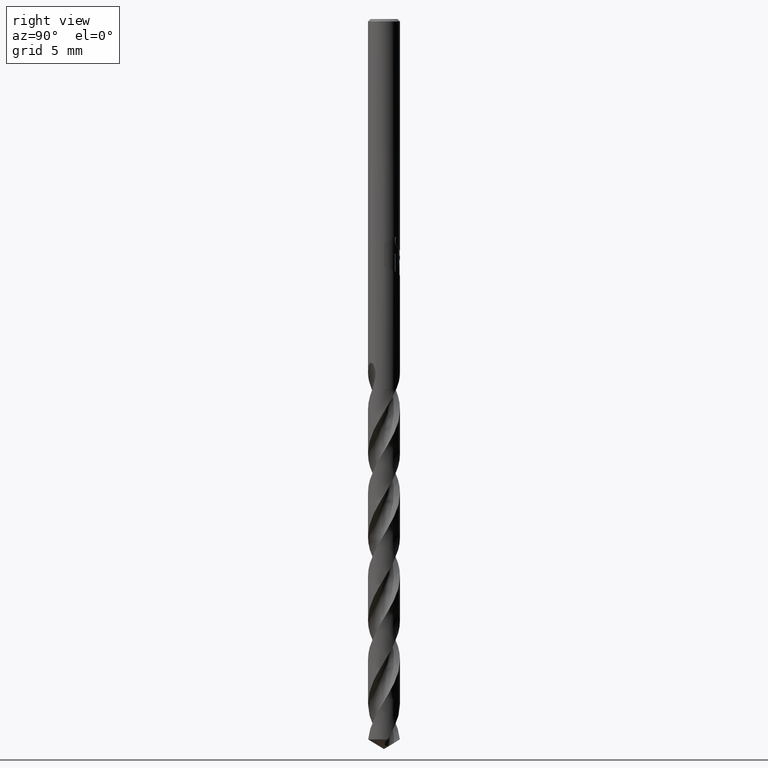
[diagram: clean part render]
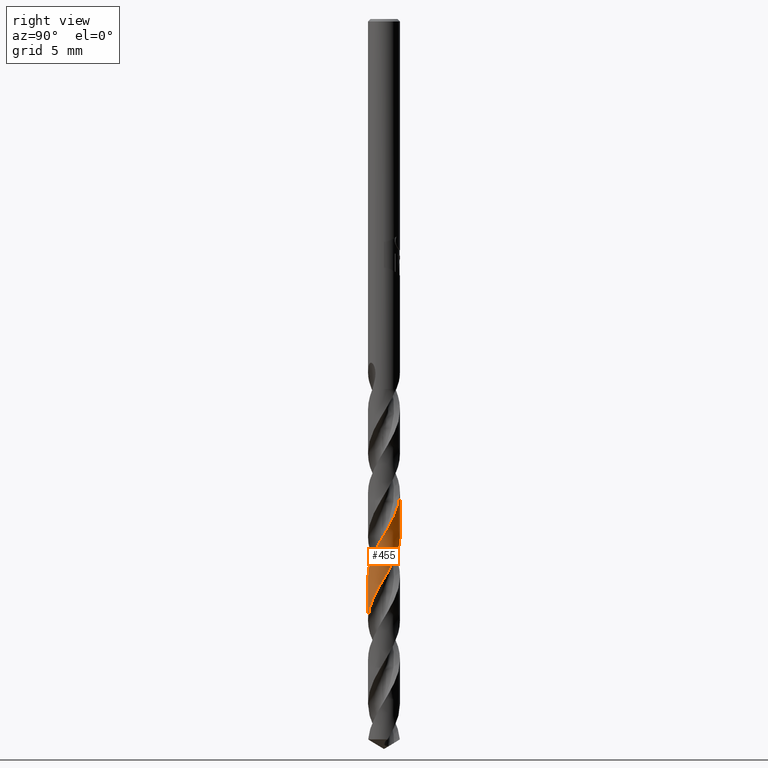
[diagram: same view with one face highlighted and labeled with its STEP entity id]
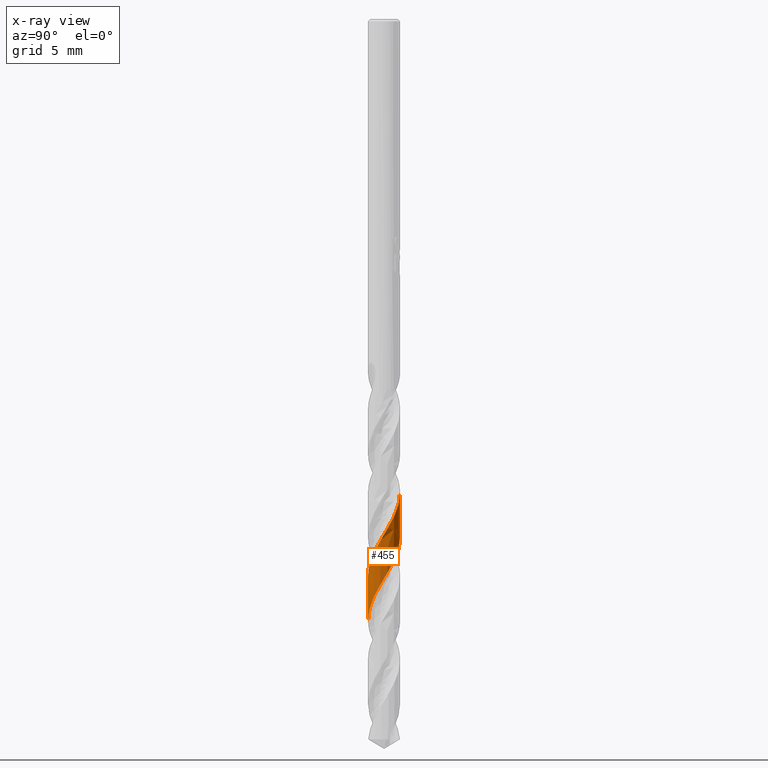
[diagram: x-ray of the same camera — body ghosted, the highlighted face saturated]
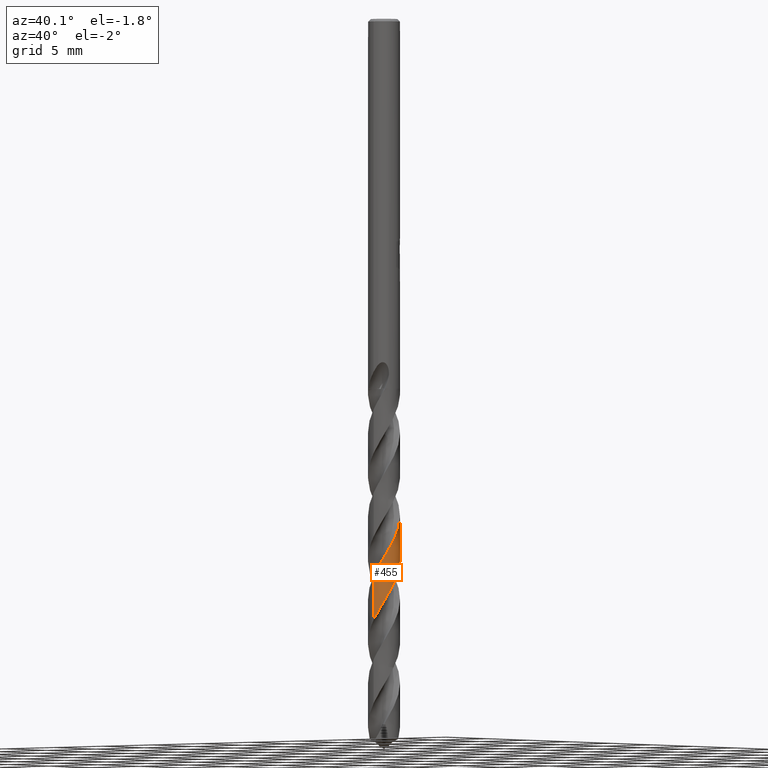
[diagram: same view with one face highlighted and labeled with its STEP entity id]
A machine part, right view. The second image highlights one B-rep face of the part: STEP entity #455.
The next image is the same camera in x-ray: the body ghosted, the highlighted face saturated — about 0% of this face is hidden behind the body in this view.
A second angle (auxiliary view) of the same face is appended — the face is thin or edge-on in the first view.
In plain terms, the highlighted conical surface has half-angle 0 deg.
Its self-contained STEP definition (entity closure, byte-faithful):
#377=EDGE_CURVE('',#393,#419,#904,.T.);
#383=EDGE_CURVE('',#393,#405,#911,.T.);
#393=VERTEX_POINT('',#921);
#405=VERTEX_POINT('',#934);
#419=VERTEX_POINT('',#948);
#455=ADVANCED_FACE('',(#986),#987,.T.);
#465=EDGE_CURVE('',#759,#405,#998,.T.);
#529=EDGE_CURVE('',#759,#419,#1071,.T.);
#759=VERTEX_POINT('',#1320);
#904=LINE('',#2755,#2756);
#911=B_SPLINE_CURVE_WITH_KNOTS('',3,(#2944,#2945,#2946,#2947,#2948,#2949,#2950,#2951,#2952,#2953,#2954,#2955,#2956,#2957,#2958,#2959,#2960,#2961,#2962,#2963,#2964,#2965,#2966,#2967,#2968,#2969,#2970,#2971,#2972,#2973,#2974,#2975,#2976,#2977,#2978,#2979,#2980,#2981,#2982,#2983,#2984,#2985,#2986,#2987,#2988,#2989,#2990,#2991,#2992,#2993,#2994,#2995,#2996,#2997,#2998,#2999,#3000,#3001,#3002,#3003,#3004,#3005,#3006,#3007,#3008,#3009,#3010,#3011,#3012,#3013,#3014,#3015,#3016,#3017,#3018,#3019,#3020,#3021,#3022,#3023,#3024,#3025,#3026,#3027,#3028,#3029,#3030,#3031,#3032,#3033,#3034,#3035,#3036,#3037,#3038,#3039,#3040,#3041,#3042,#3043,#3044,#3045,#3046,#3047,#3048,#3049,#3050,#3051,#3052,#3053,#3054,#3055,#3056,#3057,#3058,#3059,#3060,#3061,#3062,#3063,#3064,#3065,#3066,#3067,#3068,#3069,#3070,#3071,#3072,#3073,#3074,#3075,#3076,#3077,#3078,#3079,#3080,#3081,#3082,#3083,#3084,#3085,#3086,#3087,#3088,#3089,#3090,#3091,#3092,#3093,#3094,#3095,#3096,#3097,#3098,#3099,#3100,#3101,#3102,#3103,#3104,#3105,#3106,#3107,#3108,#3109,#3110,#3111,#3112,#3113,#3114,#3115,#3116,#3117,#3118,#3119,#3120,#3121,#3122,#3123),.UNSPECIFIED.,.F.,.F.,(4,2,2,2,2,2,2,2,2,2,2,2,2,2,2,2,2,2,2,2,2,2,2,2,2,2,2,2,2,2,2,2,2,2,2,2,2,2,2,2,2,2,2,2,2,2,2,2,2,2,2,2,2,2,2,2,2,2,2,2,2,2,2,2,2,2,2,2,2,2,2,2,2,2,2,2,2,2,2,2,2,2,2,2,2,2,2,2,2,4),(0.0,0.0909348931718711,0.115186404871069,0.126380924618009,0.133713174575487,0.13948985167161,0.143998271473783,0.147488724298821,0.150173072160435,0.152226289511834,0.153789951420098,0.154976708090192,0.155875004566876,0.156553553889951,0.316042703266544,0.352636866964819,0.372468255474102,0.389006252391213,0.408476555021637,0.443421068836232,0.486408987907577,0.60269619316079,0.755117598854112,0.830415767092418,0.89063847978405,0.959537293950322,0.997951065865658,1.09698685808744,1.30077163526895,1.48442158252795,1.66019078902333,2.14607847380218,2.75932737589629,3.5783399073448,3.8065169713828,4.29200475412673,4.89939587442972,5.27658758449398,5.86265981877751,6.3252195000613,6.94965006182895,7.32635802853059,7.91129176533725,8.37867294591997,9.00863678988123,9.37497656258834,9.95776221305471,10.4308968229521,11.065683557127,11.4236683442172,12.0056654136052,12.4802578372729,13.1159354979964,13.4719022686478,14.0533447300325,14.5286798215418,15.1652239522879,15.519369418626,16.1008941549275,16.5751121737535,17.2105555432538,17.5658527380777,18.1471049861199,18.6212119408332,19.2563336845716,19.6115126588065,20.1921493381833,20.6671410470568,21.3030497491658,21.6565153287659,22.23733066286,22.7109259570928,23.34555713719,23.7004541160807,24.2809905435139,24.7545116749879,25.3889046918527,25.7435711029265,26.3236035371818,26.7976664052889,27.4320243638706,27.7860757874193,28.3668763025597,28.8387480909508,29.4705654763868,29.8256577611619,30.4019313972766,31.1266380394981,31.4946311360113,31.8656853193045),.UNSPECIFIED.);
#921=CARTESIAN_POINT('',(-5.60317843082092E-014,1.2499296575455,-37.0039854017858));
#934=CARTESIAN_POINT('',(-5.320533709324E-013,-1.24995346099853,-43.5163540786839));
#948=CARTESIAN_POINT('',(1.45499969649048E-016,1.24994220320497,-40.4363428703288));
#986=FACE_OUTER_BOUND('',#3436,.T.);
#987=CONICAL_SURFACE('',#3437,1.24995,3.65511447645748E-006);
#998=LINE('',#3453,#3454);
#1071=B_SPLINE_CURVE_WITH_KNOTS('',3,(#5805,#5806,#5807,#5808,#5809,#5810,#5811,#5812,#5813,#5814,#5815,#5816,#5817,#5818,#5819,#5820,#5821,#5822,#5823,#5824,#5825,#5826,#5827,#5828,#5829,#5830,#5831,#5832,#5833,#5834,#5835,#5836,#5837,#5838,#5839,#5840,#5841,#5842,#5843,#5844,#5845,#5846,#5847,#5848,#5849,#5850,#5851,#5852,#5853,#5854,#5855,#5856,#5857,#5858,#5859,#5860,#5861,#5862,#5863,#5864,#5865,#5866,#5867,#5868,#5869,#5870,#5871,#5872,#5873,#5874,#5875,#5876,#5877,#5878,#5879,#5880,#5881,#5882,#5883,#5884,#5885,#5886,#5887,#5888,#5889,#5890,#5891,#5892,#5893,#5894,#5895,#5896,#5897,#5898,#5899,#5900,#5901,#5902,#5903,#5904,#5905,#5906,#5907,#5908,#5909,#5910,#5911,#5912,#5913,#5914,#5915,#5916,#5917,#5918,#5919,#5920,#5921,#5922,#5923,#5924,#5925,#5926,#5927,#5928,#5929,#5930,#5931,#5932,#5933,#5934,#5935,#5936,#5937,#5938,#5939,#5940,#5941,#5942,#5943,#5944,#5945,#5946,#5947,#5948,#5949,#5950,#5951,#5952,#5953,#5954),.UNSPECIFIED.,.F.,.F.,(4,2,2,2,2,2,2,2,2,2,2,2,2,2,2,2,2,2,2,2,2,2,2,2,2,2,2,2,2,2,2,2,2,2,2,2,2,2,2,2,2,2,2,2,2,2,2,2,2,2,2,2,2,2,2,2,2,2,2,2,2,2,2,2,2,2,2,2,2,2,2,2,2,2,4),(0.0,0.365916372222381,0.820304791255195,1.04655696786123,1.27803307812477,2.11266659182698,2.32275710199181,3.15788784397125,3.36212088962481,4.21683285897001,4.31563751838501,5.03475957910948,5.66145739077558,6.1102102127332,6.65287451289157,7.09969309095822,7.70523282328109,8.15333191463379,8.62750838921573,9.27581148330259,9.50252762851326,10.2990852815213,10.5310919660561,11.3205802459735,11.5605495352967,12.3403776657064,12.8353441999944,13.2851131150844,13.9213311786311,14.373701780281,14.9170809289804,15.3673247441859,15.979547237918,16.4311816263969,16.9089785846059,17.5646067982347,17.7916233352997,18.597299418671,18.8287801051193,19.6280799395391,19.8666041904523,20.6570301266019,21.1467772154434,21.5996978178747,22.242180949172,22.6978093734393,23.2436558936871,23.6970731446351,24.3144593837787,24.7693138109984,25.2504682043452,25.9121513271063,26.1400153917101,26.9507141600616,27.1833007364029,27.9920988956226,28.2331617409005,29.0370226530138,29.4918883354473,30.0084083575428,30.4597777006986,30.9059589686864,31.2500066492073,31.3290123694641,31.4340604846941,31.5372028871265,31.6848006548203,31.9147010355751,32.010917240923,32.0711725410525,32.1268236191268,32.1998986544673,32.357736841362,32.5721091756097,33.0274677063609),.UNSPECIFIED.);
#1320=CARTESIAN_POINT('',(8.57279722851468E-013,-1.24996600292894,-46.9476913154722));
#2755=CARTESIAN_POINT('',(-1.5309022535244E-016,1.24995,-42.5694621131078));
#2756=VECTOR('',#8751,1.0);
#2944=CARTESIAN_POINT('',(0.868775969749308,-0.898598002485775,-28.895));
#2945=CARTESIAN_POINT('',(0.858083659727856,-0.90893559799217,-28.9214121866362));
#2946=CARTESIAN_POINT('',(0.847154556309,-0.919134433198021,-28.9478172603143));
#2947=CARTESIAN_POINT('',(0.832922112180515,-0.931937682534327,-28.9812353377912));
#2948=CARTESIAN_POINT('',(0.829906488042843,-0.934624274016671,-28.9882637287386));
#2949=CARTESIAN_POINT('',(0.825467186817727,-0.938540580138256,-28.9985311015643));
#2950=CARTESIAN_POINT('',(0.824060865911289,-0.939775628818279,-29.0017722414739));
#2951=CARTESIAN_POINT('',(0.821725870007577,-0.941816957527043,-29.0071345268221));
#2952=CARTESIAN_POINT('',(0.820799875342317,-0.94262409035301,-29.0092561085056));
#2953=CARTESIAN_POINT('',(0.819140840735871,-0.944065863952056,-29.013048276764));
#2954=CARTESIAN_POINT('',(0.818408576522674,-0.944700742005615,-29.0147189763835));
#2955=CARTESIAN_POINT('',(0.817102647880602,-0.945830329622066,-29.0176930030216));
#2956=CARTESIAN_POINT('',(0.816529475431421,-0.946325196961381,-29.0189964192832));
#2957=CARTESIAN_POINT('',(0.815511231821861,-0.94720271568623,-29.0213085906585));
#2958=CARTESIAN_POINT('',(0.815066465567243,-0.94758546859251,-29.0223174097147));
#2959=CARTESIAN_POINT('',(0.814278862651321,-0.948262291215005,-29.0241018451928));
#2960=CARTESIAN_POINT('',(0.81393621132952,-0.948556424424901,-29.0248775044869));
#2961=CARTESIAN_POINT('',(0.813331006593004,-0.949075364753907,-29.026246321528));
#2962=CARTESIAN_POINT('',(0.813068563986429,-0.949300210710241,-29.0268395068263));
#2963=CARTESIAN_POINT('',(0.812605982562607,-0.949696191558823,-29.0278843638647));
#2964=CARTESIAN_POINT('',(0.812405909178837,-0.949867349720251,-29.0283360526016));
#2965=CARTESIAN_POINT('',(0.81205383103448,-0.950168351762969,-29.0291305090698));
#2966=CARTESIAN_POINT('',(0.811901864381711,-0.950298209488181,-29.0294732873162));
#2967=CARTESIAN_POINT('',(0.811634778630833,-0.950526327301925,-29.0300754994461));
#2968=CARTESIAN_POINT('',(0.811519681612437,-0.950624595470044,-29.0303349395458));
#2969=CARTESIAN_POINT('',(0.811317591633674,-0.950797073505426,-29.0307903384764));
#2970=CARTESIAN_POINT('',(0.811230611515443,-0.950871287933048,-29.0309863006344));
#2971=CARTESIAN_POINT('',(0.790695482129786,-0.968387697085762,-29.0772408684924));
#2972=CARTESIAN_POINT('',(0.769617274291943,-0.985244688592579,-29.122309517461));
#2973=CARTESIAN_POINT('',(0.742349948045237,-1.00558913478447,-29.1780601556356));
#2974=CARTESIAN_POINT('',(0.737220748594385,-1.00935575617211,-29.1884453848039));
#2975=CARTESIAN_POINT('',(0.729243836821779,-1.01511983220821,-29.2044548189707));
#2976=CARTESIAN_POINT('',(0.726428855168878,-1.01713621135462,-29.2100776807689));
#2977=CARTESIAN_POINT('',(0.721244630314136,-1.02081710940446,-29.2203873922235));
#2978=CARTESIAN_POINT('',(0.718879674257852,-1.02248397101214,-29.2250732688629));
#2979=CARTESIAN_POINT('',(0.713713530314247,-1.02609833062655,-29.2352743082833));
#2980=CARTESIAN_POINT('',(0.710910225502145,-1.02804256852729,-29.2407874538801));
#2981=CARTESIAN_POINT('',(0.703047483004885,-1.03344817929511,-29.2561941561783));
#2982=CARTESIAN_POINT('',(0.69796955149193,-1.03688456232362,-29.2660790485417));
#2983=CARTESIAN_POINT('',(0.686581142229506,-1.04446969847785,-29.2881306623741));
#2984=CARTESIAN_POINT('',(0.680264162905005,-1.04859492012435,-29.3002830560172));
#2985=CARTESIAN_POINT('',(0.656730530955912,-1.06366131865706,-29.345355778601));
#2986=CARTESIAN_POINT('',(0.639680186380603,-1.07399729844407,-29.3777744126999));
#2987=CARTESIAN_POINT('',(0.599275684258597,-1.09718829109654,-29.4543668965458));
#2988=CARTESIAN_POINT('',(0.576044340735869,-1.10955565060466,-29.4980879850329));
#2989=CARTESIAN_POINT('',(0.540964349069239,-1.12684558455296,-29.5632882054038));
#2990=CARTESIAN_POINT('',(0.529283501186902,-1.13237898827135,-29.5848676365098));
#2991=CARTESIAN_POINT('',(0.508122758199039,-1.14200468345581,-29.6236905109102));
#2992=CARTESIAN_POINT('',(0.498664718910563,-1.14616629559659,-29.6409476750336));
#2993=CARTESIAN_POINT('',(0.478273672748461,-1.15483821492481,-29.6779334771526));
#2994=CARTESIAN_POINT('',(0.467319047937355,-1.15931469942442,-29.697669794483));
#2995=CARTESIAN_POINT('',(0.450145106327,-1.16604916627263,-29.7283911893716));
#2996=CARTESIAN_POINT('',(0.443974265413141,-1.16841274817127,-29.7393862862878));
#2997=CARTESIAN_POINT('',(0.421812062852869,-1.17670019998661,-29.7787154673374));
#2998=CARTESIAN_POINT('',(0.405700450064806,-1.18235238566235,-29.8070120453051));
#2999=CARTESIAN_POINT('',(0.356083584411879,-1.19862356319308,-29.8935273286047));
#3000=CARTESIAN_POINT('',(0.322227808086238,-1.20816659567197,-29.9516445159065));
#3001=CARTESIAN_POINT('',(0.257145073009134,-1.22357763623696,-30.0622884903281));
#3002=CARTESIAN_POINT('',(0.226055295136733,-1.22969989933083,-30.1146882176009));
#3003=CARTESIAN_POINT('',(0.164872916853299,-1.23935329060008,-30.2173985188751));
#3004=CARTESIAN_POINT('',(0.134811882460698,-1.24298162723518,-30.2676835866551));
#3005=CARTESIAN_POINT('',(0.0213459721297254,-1.25251768484258,-30.4568161425935));
#3006=CARTESIAN_POINT('',(-0.0625106580984137,-1.25114498353103,-30.5951375478712));
#3007=CARTESIAN_POINT('',(-0.250561514810007,-1.22908388888412,-30.9091538029725));
#3008=CARTESIAN_POINT('',(-0.353550259439426,-1.20351568416137,-31.0838917654762));
#3009=CARTESIAN_POINT('',(-0.583754333367387,-1.11420004386259,-31.4930156608084));
#3010=CARTESIAN_POINT('',(-0.705723944494789,-1.04121198250382,-31.7256920943912));
#3011=CARTESIAN_POINT('',(-0.842715790326996,-0.923933324814687,-32.0249462988083));
#3012=CARTESIAN_POINT('',(-0.871358618175182,-0.896972988907671,-32.090098796938));
#3013=CARTESIAN_POINT('',(-0.956860465860503,-0.808519062537627,-32.2939664303883));
#3014=CARTESIAN_POINT('',(-1.00879834577453,-0.742695948062317,-32.4320416283124));
#3015=CARTESIAN_POINT('',(-1.11001082840053,-0.584038212731241,-32.7444052063365));
#3016=CARTESIAN_POINT('',(-1.1550132858945,-0.489081653506587,-32.9174601302185));
#3017=CARTESIAN_POINT('',(-1.20792920311802,-0.327760345641414,-33.1987514949692));
#3018=CARTESIAN_POINT('',(-1.22333235663103,-0.264515754857616,-33.3062155660886));
#3019=CARTESIAN_POINT('',(-1.24993166608802,-0.100759190324592,-33.5815852351285));
#3020=CARTESIAN_POINT('',(-1.25399741181567,0.000541382109813221,-33.7487311531019));
#3021=CARTESIAN_POINT('',(-1.23934494868365,0.180788912007263,-34.048403298394));
#3022=CARTESIAN_POINT('',(-1.2252906537533,0.259441954392077,-34.1800612708203));
#3023=CARTESIAN_POINT('',(-1.17492925522901,0.439786878360746,-34.4908728329369));
#3024=CARTESIAN_POINT('',(-1.13272176488543,0.539303505937175,-34.6688470748812));
#3025=CARTESIAN_POINT('',(-1.0453638345986,0.688290034857708,-34.9549862254485));
#3026=CARTESIAN_POINT('',(-1.00819530086274,0.741661645224662,-35.0623507348469));
#3027=CARTESIAN_POINT('',(-0.903217572304763,0.869865210456843,-35.337368897463));
#3028=CARTESIAN_POINT('',(-0.830118757310038,0.939892245358703,-35.5042659881977));
#3029=CARTESIAN_POINT('',(-0.684811829616671,1.0487364058149,-35.8051199296175));
#3030=CARTESIAN_POINT('',(-0.615792609193358,1.09068837176779,-35.9382026146118));
#3031=CARTESIAN_POINT('',(-0.445483624772512,1.1728798574623,-36.2521097523101));
#3032=CARTESIAN_POINT('',(-0.341900418978178,1.20716363660719,-36.4317118139286));
#3033=CARTESIAN_POINT('',(-0.1730195316956,1.23950929654946,-36.7165855077875));
#3034=CARTESIAN_POINT('',(-0.110154611534808,1.24666615425297,-36.8210525812731));
#3035=CARTESIAN_POINT('',(0.0533433980818826,1.25282569967932,-37.0926036424455));
#3036=CARTESIAN_POINT('',(0.153896014757655,1.24449203191934,-37.2589638942672));
#3037=CARTESIAN_POINT('',(0.332391652910807,1.20768942875871,-37.5609757837391));
#3038=CARTESIAN_POINT('',(0.410508823727845,1.18341306209699,-37.6957434765378));
#3039=CARTESIAN_POINT('',(0.586507934405592,1.10919722734203,-38.0128088797651));
#3040=CARTESIAN_POINT('',(0.681409918916396,1.05357900836311,-38.1938391307323));
#3041=CARTESIAN_POINT('',(0.816663813905275,0.948271285405443,-38.4778181897738));
#3042=CARTESIAN_POINT('',(0.86251603106661,0.906761328322405,-38.5799566631263));
#3043=CARTESIAN_POINT('',(0.97431857850653,0.789378465739036,-38.8490024691476));
#3044=CARTESIAN_POINT('',(1.03458383029757,0.708574511480368,-39.0152080802858));
#3045=CARTESIAN_POINT('',(1.12528178766069,0.550274201349498,-39.3175366490742));
#3046=CARTESIAN_POINT('',(1.15890289239655,0.475384851252431,-39.452772744992));
#3047=CARTESIAN_POINT('',(1.21984518892963,0.293849416628629,-39.7706421471106));
#3048=CARTESIAN_POINT('',(1.24093869083821,0.185685946363587,-39.9519964283697));
#3049=CARTESIAN_POINT('',(1.25136648489801,0.0147108873563379,-40.2357701787344));
#3050=CARTESIAN_POINT('',(1.25057390704594,-0.0468106982549612,-40.3373776562886));
#3051=CARTESIAN_POINT('',(1.2366013636904,-0.207935829109301,-40.6057985170037));
#3052=CARTESIAN_POINT('',(1.21592766282864,-0.306539687301335,-40.7719157845735));
#3053=CARTESIAN_POINT('',(1.15726883704404,-0.47940825669922,-41.0744240012159));
#3054=CARTESIAN_POINT('',(1.12330582425146,-0.554322359680909,-41.2099267003509));
#3055=CARTESIAN_POINT('',(1.0273267873546,-0.720436135600326,-41.5283890794215));
#3056=CARTESIAN_POINT('',(0.960037342564885,-0.807957593056573,-41.7100610082808));
#3057=CARTESIAN_POINT('',(0.838743510904535,-0.928775761336888,-41.993678333254));
#3058=CARTESIAN_POINT('',(0.792303280097324,-0.968691141799471,-42.0948102494579));
#3059=CARTESIAN_POINT('',(0.662450459728547,-1.06470978958026,-42.362843583227));
#3060=CARTESIAN_POINT('',(0.574794203819016,-1.11448898332973,-42.5290517121033));
#3061=CARTESIAN_POINT('',(0.40646192591323,-1.18485534758655,-42.8313877866803));
#3062=CARTESIAN_POINT('',(0.327977278663587,-1.20892939961376,-42.9666289506726));
#3063=CARTESIAN_POINT('',(0.140231010820226,-1.24689548376225,-43.2845864636168));
#3064=CARTESIAN_POINT('',(0.0302341693337542,-1.25440720431136,-43.4660224386124));
#3065=CARTESIAN_POINT('',(-0.14070009504827,-1.24352812205763,-43.7497712551111));
#3066=CARTESIAN_POINT('',(-0.201584198541504,-1.23511715893641,-43.8512718023884));
#3067=CARTESIAN_POINT('',(-0.359720914373247,-1.20127579322528,-44.1196673186051));
#3068=CARTESIAN_POINT('',(-0.455047578592375,-1.16851224052995,-44.2858660443048));
#3069=CARTESIAN_POINT('',(-0.619216446575529,-1.08889073960273,-44.5882167480609));
#3070=CARTESIAN_POINT('',(-0.689220353748684,-1.0459795554753,-44.7234817350952));
#3071=CARTESIAN_POINT('',(-0.84194074563297,-0.930356293392722,-45.0414463452162));
#3072=CARTESIAN_POINT('',(-0.920363994313401,-0.852874877513605,-45.2228654967327));
#3073=CARTESIAN_POINT('',(-1.02533638872838,-0.717537933379411,-45.5066055911925));
#3074=CARTESIAN_POINT('',(-1.05932903990928,-0.666325178121812,-45.608114191712));
#3075=CARTESIAN_POINT('',(-1.13858990705653,-0.525431980435676,-45.8764105926069));
#3076=CARTESIAN_POINT('',(-1.17710066175893,-0.432349588940069,-46.0425034284608));
#3077=CARTESIAN_POINT('',(-1.22612387881367,-0.256474161602737,-46.3450570482624));
#3078=CARTESIAN_POINT('',(-1.24031290759408,-0.175409369653876,-46.480629129613));
#3079=CARTESIAN_POINT('',(-1.25468233486364,0.0159716990556258,-46.799205394037));
#3080=CARTESIAN_POINT('',(-1.24843483495519,0.126221868435994,-46.9809201942837));
#3081=CARTESIAN_POINT('',(-1.21634782167421,0.294374299694325,-47.2645118440766));
#3082=CARTESIAN_POINT('',(-1.20050007844876,0.35348231137239,-47.3655750130948));
#3083=CARTESIAN_POINT('',(-1.14739006126202,0.505956919316112,-47.6335419926344));
#3084=CARTESIAN_POINT('',(-1.10305125346134,0.596490413016092,-47.7997530602055));
#3085=CARTESIAN_POINT('',(-1.00368580181375,0.749503596643394,-48.1020818035272));
#3086=CARTESIAN_POINT('',(-0.952436236327693,0.813628874155948,-48.2373127661305));
#3087=CARTESIAN_POINT('',(-0.81877704017528,0.950823208450411,-48.555252605002));
#3088=CARTESIAN_POINT('',(-0.732163094393837,1.01903693471049,-48.7366813747913));
#3089=CARTESIAN_POINT('',(-0.58484446098854,1.10641980012017,-49.0204341288216));
#3090=CARTESIAN_POINT('',(-0.529808979565276,1.13379986801311,-49.1219458858928));
#3091=CARTESIAN_POINT('',(-0.380109223647881,1.19500135029601,-49.3903537322312));
#3092=CARTESIAN_POINT('',(-0.282901956142331,1.2216809023815,-49.5565534864678));
#3093=CARTESIAN_POINT('',(-0.1024171521187,1.24846752774817,-49.8589054176763));
#3094=CARTESIAN_POINT('',(-0.0204051149782919,1.25248950264486,-49.9941706104709));
#3095=CARTESIAN_POINT('',(0.170929194832776,1.24308526330988,-50.312151808619));
#3096=CARTESIAN_POINT('',(0.279393910956958,1.22329686165664,-50.4935870945036));
#3097=CARTESIAN_POINT('',(0.442390043600278,1.17068918827347,-50.777322507489));
#3098=CARTESIAN_POINT('',(0.499326146339689,1.14755714199554,-50.8788102565195));
#3099=CARTESIAN_POINT('',(0.644228650239252,1.07586600051686,-51.1471183074151));
#3100=CARTESIAN_POINT('',(0.728528448718377,1.02068158822616,-51.3132434242523));
#3101=CARTESIAN_POINT('',(0.868135401164539,0.903071630689722,-51.6157317531719));
#3102=CARTESIAN_POINT('',(0.925515831741705,0.844158572499288,-51.7512067429475));
#3103=CARTESIAN_POINT('',(1.0451719345399,0.694347182485731,-52.0694657194937));
#3104=CARTESIAN_POINT('',(1.10212087327918,0.59989207688692,-52.2509651120644));
#3105=CARTESIAN_POINT('',(1.17049796426486,0.442902645643846,-52.5346314277016));
#3106=CARTESIAN_POINT('',(1.19080126914135,0.384983722061618,-52.6359857977946));
#3107=CARTESIAN_POINT('',(1.23296910001699,0.228815475363642,-52.9044489105664));
#3108=CARTESIAN_POINT('',(1.24738765256578,0.128918023645615,-53.070860447828));
#3109=CARTESIAN_POINT('',(1.25152086089567,-0.0534081435879379,-53.3730654370445));
#3110=CARTESIAN_POINT('',(1.24535127420281,-0.135067222268136,-53.5079756093261));
#3111=CARTESIAN_POINT('',(1.21242437600257,-0.323201884396372,-53.8250054257615));
#3112=CARTESIAN_POINT('',(1.17950873581341,-0.428053833706115,-54.0058568913399));
#3113=CARTESIAN_POINT('',(1.10734860515645,-0.583137047466496,-54.2892069669831));
#3114=CARTESIAN_POINT('',(1.07732022760018,-0.636900721065524,-54.3908920808363));
#3115=CARTESIAN_POINT('',(0.988554844909207,-0.771489535608243,-54.6584675257888));
#3116=CARTESIAN_POINT('',(0.923823137554577,-0.84794581311662,-54.8236794673208));
#3117=CARTESIAN_POINT('',(0.75861716606217,-1.00138138836603,-55.1973426724677));
#3118=CARTESIAN_POINT('',(0.654256461898798,-1.07247049501979,-55.4043749370762));
#3119=CARTESIAN_POINT('',(0.483669167275214,-1.15439199466962,-55.7183038058066));
#3120=CARTESIAN_POINT('',(0.424161360238407,-1.17756289570692,-55.8238158305326));
#3121=CARTESIAN_POINT('',(0.301545778528162,-1.21478694719997,-56.0360449558911));
#3122=CARTESIAN_POINT('',(0.23870603479614,-1.22867511651916,-56.1422609160402));
#3123=CARTESIAN_POINT('',(0.175120365243364,-1.23767235473571,-56.2489242262155));
#3436=EDGE_LOOP('',(#8845,#8846,#8847,#8848));
#3437=AXIS2_PLACEMENT_3D('',#8849,#8850,#8851);
#3453=CARTESIAN_POINT('',(1.53049117039616E-016,-1.24995,-42.5694621131078));
#3454=VECTOR('',#8862,1.0);
#5805=CARTESIAN_POINT('',(1.21820199376776,0.28014978561521,-56.2489242262156));
#5806=CARTESIAN_POINT('',(1.20410905613125,0.341429744020133,-56.1444093714923));
#5807=CARTESIAN_POINT('',(1.18545508216414,0.401442202196847,-56.0392148419657));
#5808=CARTESIAN_POINT('',(1.13353361235069,0.532640807342113,-55.8047358331904));
#5809=CARTESIAN_POINT('',(1.09797794156153,0.602568552148083,-55.6757900692852));
#5810=CARTESIAN_POINT('',(1.03512589482031,0.70180628452883,-55.48153377448));
#5811=CARTESIAN_POINT('',(1.01273372599989,0.733742036686589,-55.4170400205659));
#5812=CARTESIAN_POINT('',(0.964577700768516,0.796031649957002,-55.2862440947739));
#5813=CARTESIAN_POINT('',(0.938791865387572,0.826280725525036,-55.2198763125255));
#5814=CARTESIAN_POINT('',(0.813553650432938,0.959766775718274,-54.9154117926667));
#5815=CARTESIAN_POINT('',(0.698371562676192,1.04654111006414,-54.6822663986016));
#5816=CARTESIAN_POINT('',(0.539004506046306,1.12838605034473,-54.3841230595476));
#5817=CARTESIAN_POINT('',(0.50631702429609,1.14342719857296,-54.3239877452621));
#5818=CARTESIAN_POINT('',(0.34025396415216,1.21130225208029,-54.0255183664637));
#5819=CARTESIAN_POINT('',(0.199371651772876,1.24226445905972,-53.7923584524739));
#5820=CARTESIAN_POINT('',(0.0213927162779941,1.25029706993826,-53.4957634294143));
#5821=CARTESIAN_POINT('',(-0.013592674366106,1.25040823952202,-53.43731385323));
#5822=CARTESIAN_POINT('',(-0.195389180823723,1.24332548969328,-53.1347221011557));
#5823=CARTESIAN_POINT('',(-0.339745977248664,1.21181909207782,-52.8961505881404));
#5824=CARTESIAN_POINT('',(-0.490911865738856,1.14967788452035,-52.6237550909922));
#5825=CARTESIAN_POINT('',(-0.506409051772072,1.14293623472397,-52.5955154354022));
#5826=CARTESIAN_POINT('',(-0.633791154985301,1.08441828693158,-52.3618319198906));
#5827=CARTESIAN_POINT('',(-0.737745575189316,1.01661602764539,-52.1597797065531));
#5828=CARTESIAN_POINT('',(-0.910872352043278,0.862786915403041,-51.7762893872643));
#5829=CARTESIAN_POINT('',(-0.981842697197945,0.781081638638097,-51.596592306726));
#5830=CARTESIAN_POINT('',(-1.08424155013131,0.626774594496716,-51.2901782319376));
#5831=CARTESIAN_POINT('',(-1.12087708268031,0.558607032604259,-51.163130991496));
#5832=CARTESIAN_POINT('',(-1.18736770192021,0.401640697043869,-50.880548036016));
#5833=CARTESIAN_POINT('',(-1.21403071792353,0.311943777511795,-50.7248636101863));
#5834=CARTESIAN_POINT('',(-1.24401022911272,0.144235978356031,-50.4428197668445));
#5835=CARTESIAN_POINT('',(-1.25052426921931,0.0674385305644809,-50.3162856082723));
#5836=CARTESIAN_POINT('',(-1.24915308772798,-0.113665490209233,-50.0163245965857));
#5837=CARTESIAN_POINT('',(-1.23535303342366,-0.217304467333834,-49.8426249323484));
#5838=CARTESIAN_POINT('',(-1.18916201225734,-0.392795877151728,-49.5423252244575));
#5839=CARTESIAN_POINT('',(-1.16265743325968,-0.465410963312582,-49.4154221183314));
#5840=CARTESIAN_POINT('',(-1.09474065419113,-0.60879545266425,-49.1524907930443));
#5841=CARTESIAN_POINT('',(-1.05276089813011,-0.678804416925763,-49.0164485493102));
#5842=CARTESIAN_POINT('',(-0.937838281631376,-0.833855841037921,-48.6964415976163));
#5843=CARTESIAN_POINT('',(-0.859831726777781,-0.914054879705369,-48.5140492689586));
#5844=CARTESIAN_POINT('',(-0.741765859433254,-1.00683870089639,-48.2645323541768));
#5845=CARTESIAN_POINT('',(-0.710149999251599,-1.02937779261458,-48.1996624347888));
#5846=CARTESIAN_POINT('',(-0.562997307344565,-1.12429477797017,-47.9081549885288));
#5847=CARTESIAN_POINT('',(-0.437145352873387,-1.17895409437766,-47.6858164078551));
#5848=CARTESIAN_POINT('',(-0.266325977552613,-1.22191163861543,-47.3932285446972));
#5849=CARTESIAN_POINT('',(-0.227456388944933,-1.22973548637108,-47.3269984913132));
#5850=CARTESIAN_POINT('',(-0.0551399642281717,-1.255995219554,-47.0367829827852));
#5851=CARTESIAN_POINT('',(0.0804643335487957,-1.25464306762575,-46.8169111478318));
#5852=CARTESIAN_POINT('',(0.253747840730879,-1.22462391212793,-46.5249064779365));
#5853=CARTESIAN_POINT('',(0.293667835077306,-1.21566240491649,-46.4565884011634));
#5854=CARTESIAN_POINT('',(0.460825169899684,-1.16945934072554,-46.1677777568871));
#5855=CARTESIAN_POINT('',(0.582270947730163,-1.11400781795543,-45.9511575959867));
#5856=CARTESIAN_POINT('',(0.763016551857143,-0.993638569212133,-45.5907884139783));
#5857=CARTESIAN_POINT('',(0.828342121005244,-0.939891335338529,-45.4499410704943));
#5858=CARTESIAN_POINT('',(0.941907983050284,-0.825292665207506,-45.1827816736736));
#5859=CARTESIAN_POINT('',(0.990824108380374,-0.765874477398094,-45.0564211011999));
#5860=CARTESIAN_POINT('',(1.09502046038628,-0.612476477190127,-44.7493644850366));
#5861=CARTESIAN_POINT('',(1.14406336163026,-0.515102063882328,-44.568354215101));
#5862=CARTESIAN_POINT('',(1.20544367571303,-0.339515367807576,-44.2605987320337));
#5863=CARTESIAN_POINT('',(1.22410872485536,-0.264392343952961,-44.1335187175482));
#5864=CARTESIAN_POINT('',(1.24967131992688,-0.0964474954298429,-43.8518914246015));
#5865=CARTESIAN_POINT('',(1.25339170561286,-0.00355262914592747,-43.6972047446365));
#5866=CARTESIAN_POINT('',(1.24129751365793,0.165771538084262,-43.4161634427148));
#5867=CARTESIAN_POINT('',(1.22874847012308,0.241807134532719,-43.2896420332044));
#5868=CARTESIAN_POINT('',(1.18284947171998,0.417344866219538,-42.9891370812945));
#5869=CARTESIAN_POINT('',(1.14384810027036,0.514719341237845,-42.8148771335829));
#5870=CARTESIAN_POINT('',(1.05566861295378,0.673717831483743,-42.5140059331638));
#5871=CARTESIAN_POINT('',(1.01208224917024,0.737567570596285,-42.3870889335211));
#5872=CARTESIAN_POINT('',(0.910928718656775,0.859785646532399,-42.1241603650451));
#5873=CARTESIAN_POINT('',(0.853000475108017,0.917281403786797,-41.9881368408775));
#5874=CARTESIAN_POINT('',(0.703119289906316,1.03947221435076,-41.6674995961627));
#5875=CARTESIAN_POINT('',(0.607394696279641,1.09813433929555,-41.4844842056763));
#5876=CARTESIAN_POINT('',(0.469932764023076,1.15888746703109,-41.2347238844859));
#5877=CARTESIAN_POINT('',(0.433963253473107,1.1728276031107,-41.1702687877685));
#5878=CARTESIAN_POINT('',(0.267678621647331,1.22858869715877,-40.878308974602));
#5879=CARTESIAN_POINT('',(0.131705032662765,1.2505017261614,-40.6551643506717));
#5880=CARTESIAN_POINT('',(-0.0445343119225877,1.2497674812417,-40.3623532326411));
#5881=CARTESIAN_POINT('',(-0.0837367379952451,1.2477498435532,-40.2967743424354));
#5882=CARTESIAN_POINT('',(-0.257485910034622,1.23060218118008,-40.0060911296217));
#5883=CARTESIAN_POINT('',(-0.389172401786369,1.19551597703978,-39.785179676178));
#5884=CARTESIAN_POINT('',(-0.549638770550786,1.12333408915843,-39.4929634498503));
#5885=CARTESIAN_POINT('',(-0.585596647170808,1.10500894452522,-39.4255598365027));
#5886=CARTESIAN_POINT('',(-0.736404039743256,1.01875596388353,-39.136258015713));
#5887=CARTESIAN_POINT('',(-0.840937443705223,0.934360472320961,-38.9183295749525));
#5888=CARTESIAN_POINT('',(-0.985525545982784,0.773262993360266,-38.5590200852484));
#5889=CARTESIAN_POINT('',(-1.03463897599773,0.706226582093686,-38.4206477811134));
#5890=CARTESIAN_POINT('',(-1.11580465938432,0.568518373844225,-38.155948708847));
#5891=CARTESIAN_POINT('',(-1.14861708348147,0.498908549249296,-38.0295980489038));
#5892=CARTESIAN_POINT('',(-1.21202452269462,0.324336688891875,-37.722060815145));
#5893=CARTESIAN_POINT('',(-1.23566339334401,0.217594719361373,-37.5405575724803));
#5894=CARTESIAN_POINT('',(-1.25190995181539,0.0319939040263573,-37.2322974697995));
#5895=CARTESIAN_POINT('',(-1.25148683221252,-0.0454189136298422,-37.1052040746329));
#5896=CARTESIAN_POINT('',(-1.23489594101058,-0.214252842420625,-36.8239505599607));
#5897=CARTESIAN_POINT('',(-1.21568405734793,-0.30497142188473,-36.6696546182179));
#5898=CARTESIAN_POINT('',(-1.16240162578477,-0.465894053745107,-36.3890052185059));
#5899=CARTESIAN_POINT('',(-1.13154332430456,-0.536505746412631,-36.2624880380831));
#5900=CARTESIAN_POINT('',(-1.04382601156805,-0.695486668674035,-35.9617559238582));
#5901=CARTESIAN_POINT('',(-0.981982322860469,-0.780384471257833,-35.7872627038756));
#5902=CARTESIAN_POINT('',(-0.857274016688786,-0.912879666675252,-35.4861542727275));
#5903=CARTESIAN_POINT('',(-0.79930740685823,-0.964033220713045,-35.3592318746789));
#5904=CARTESIAN_POINT('',(-0.671180174789407,-1.05757945687364,-35.0963048923989));
#5905=CARTESIAN_POINT('',(-0.600884800738551,-1.09903920745995,-34.9602895511239));
#5906=CARTESIAN_POINT('',(-0.42532449064596,-1.18066381357752,-34.6392630702137));
#5907=CARTESIAN_POINT('',(-0.317868247592029,-1.21399102926519,-34.4558653278429));
#5908=CARTESIAN_POINT('',(-0.169569250330597,-1.23896281157106,-34.2059163021735));
#5909=CARTESIAN_POINT('',(-0.131403066177591,-1.24358676407824,-34.1416751551126));
#5910=CARTESIAN_POINT('',(0.0432643616679772,-1.25662925672517,-33.8500985988967));
#5911=CARTESIAN_POINT('',(0.180338774400432,-1.24438170246984,-33.6271295339079));
#5912=CARTESIAN_POINT('',(0.350786135365474,-1.20032499722428,-33.3346395917714));
#5913=CARTESIAN_POINT('',(0.388202962392441,-1.18874674454323,-33.2692076057314));
#5914=CARTESIAN_POINT('',(0.552920989937954,-1.1291904842649,-32.9775801484857));
#5915=CARTESIAN_POINT('',(0.672451519282842,-1.06237118355085,-32.7556008834826));
#5916=CARTESIAN_POINT('',(0.810671109803522,-0.952229925177029,-32.4620436384989));
#5917=CARTESIAN_POINT('',(0.841078101316887,-0.925475535909484,-32.3943936747231));
#5918=CARTESIAN_POINT('',(0.966918947104009,-0.803449820503801,-32.102581390896));
#5919=CARTESIAN_POINT('',(1.04789912055914,-0.694545134067448,-31.8826599150357));
#5920=CARTESIAN_POINT('',(1.14505165253799,-0.506913095142234,-31.5316604558756));
#5921=CARTESIAN_POINT('',(1.17390505528938,-0.435982787276063,-31.4039065922303));
#5922=CARTESIAN_POINT('',(1.22134908163326,-0.279525609791277,-31.1328422592674));
#5923=CARTESIAN_POINT('',(1.23784939079713,-0.193862807749795,-30.9898562325325));
#5924=CARTESIAN_POINT('',(1.25183109006335,-0.0312674420418367,-30.7200263125132));
#5925=CARTESIAN_POINT('',(1.25139741945611,0.044869078879907,-30.5939381037975));
#5926=CARTESIAN_POINT('',(1.23689231733525,0.194865539330464,-30.3436714747797));
#5927=CARTESIAN_POINT('',(1.22304204058351,0.2682501226057,-30.2186955066205));
#5928=CARTESIAN_POINT('',(1.18724287908937,0.394969941847528,-29.9998207624113));
#5929=CARTESIAN_POINT('',(1.16771899473848,0.449588868082158,-29.9048648798672));
#5930=CARTESIAN_POINT('',(1.13868627797503,0.515590053844311,-29.7886487706097));
#5931=CARTESIAN_POINT('',(1.13323553471026,0.527458677085438,-29.7677520089207));
#5932=CARTESIAN_POINT('',(1.11984290189537,0.555448539683174,-29.7177250198585));
#5933=CARTESIAN_POINT('',(1.11191583079295,0.571143513940307,-29.6891449775576));
#5934=CARTESIAN_POINT('',(1.0956887337456,0.60167803870643,-29.6322436904478));
#5935=CARTESIAN_POINT('',(1.08741865844893,0.616489234861031,-29.6039991255838));
#5936=CARTESIAN_POINT('',(1.06681773391757,0.6517153173066,-29.5349698996659));
#5937=CARTESIAN_POINT('',(1.05432795256197,0.671700379668845,-29.4942101890809));
#5938=CARTESIAN_POINT('',(1.0216772516071,0.720918883430235,-29.3889080729789));
#5939=CARTESIAN_POINT('',(1.00766951643639,0.739687028135159,-29.3436591053657));
#5940=CARTESIAN_POINT('',(0.993353185737608,0.758651665633933,-29.2997285105938));
#5941=CARTESIAN_POINT('',(0.989011996773971,0.764304622040717,-29.2868417442988));
#5942=CARTESIAN_POINT('',(0.981742367420288,0.773599390988861,-29.2659858078745));
#5943=CARTESIAN_POINT('',(0.97889402665135,0.777201005501608,-29.2579837352849));
#5944=CARTESIAN_POINT('',(0.973316034693385,0.784173136400958,-29.2426427473293));
#5945=CARTESIAN_POINT('',(0.970594915559666,0.787539065710005,-29.2353025544974));
#5946=CARTESIAN_POINT('',(0.96419713156521,0.795367740814435,-29.2183792853287));
#5947=CARTESIAN_POINT('',(0.960489795348301,0.799841797472359,-29.2088181644305));
#5948=CARTESIAN_POINT('',(0.948523929006746,0.814074039793022,-29.178739231813));
#5949=CARTESIAN_POINT('',(0.939988602467181,0.823925317349345,-29.1584119714134));
#5950=CARTESIAN_POINT('',(0.918936893190727,0.847429807492463,-29.110946805122));
#5951=CARTESIAN_POINT('',(0.906131566020004,0.861134509893101,-29.0840718944796));
#5952=CARTESIAN_POINT('',(0.863764742250199,0.904353218027731,-29.0012930251796));
#5953=CARTESIAN_POINT('',(0.831890017418552,0.933980393436159,-28.9473903606371));
#5954=CARTESIAN_POINT('',(0.7964910527824,0.963250776549316,-28.895));
#8751=DIRECTION('',(-4.47607641180801E-022,3.65511447644934E-006,-0.99999999999332));
#8845=ORIENTED_EDGE('',*,*,#377,.F.);
#8846=ORIENTED_EDGE('',*,*,#383,.T.);
#8847=ORIENTED_EDGE('',*,*,#465,.F.);
#8848=ORIENTED_EDGE('',*,*,#529,.T.);
#8849=CARTESIAN_POINT('',(0.0,0.0,-42.5694621131078));
#8850=DIRECTION('',(0.0,-0.0,-1.0));
#8851=DIRECTION('',(0.0,1.0,0.0));
#8862=DIRECTION('',(-4.47607641180801E-022,3.65511447644934E-006,0.99999999999332));